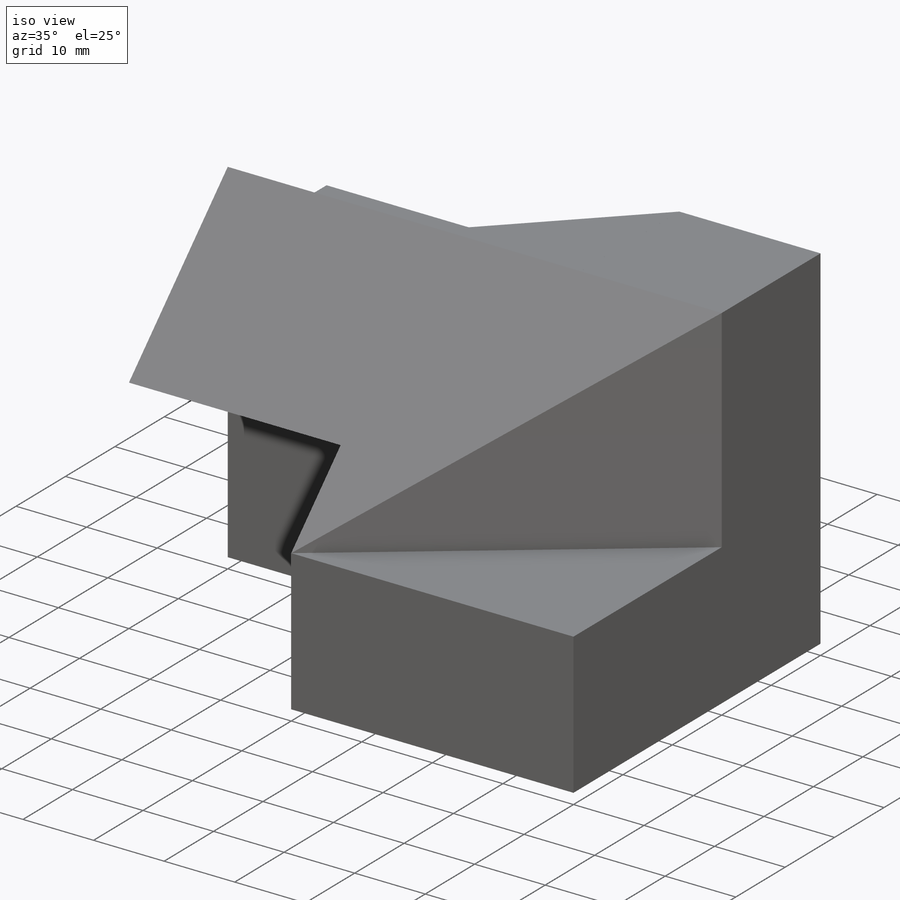
[diagram: iso view]
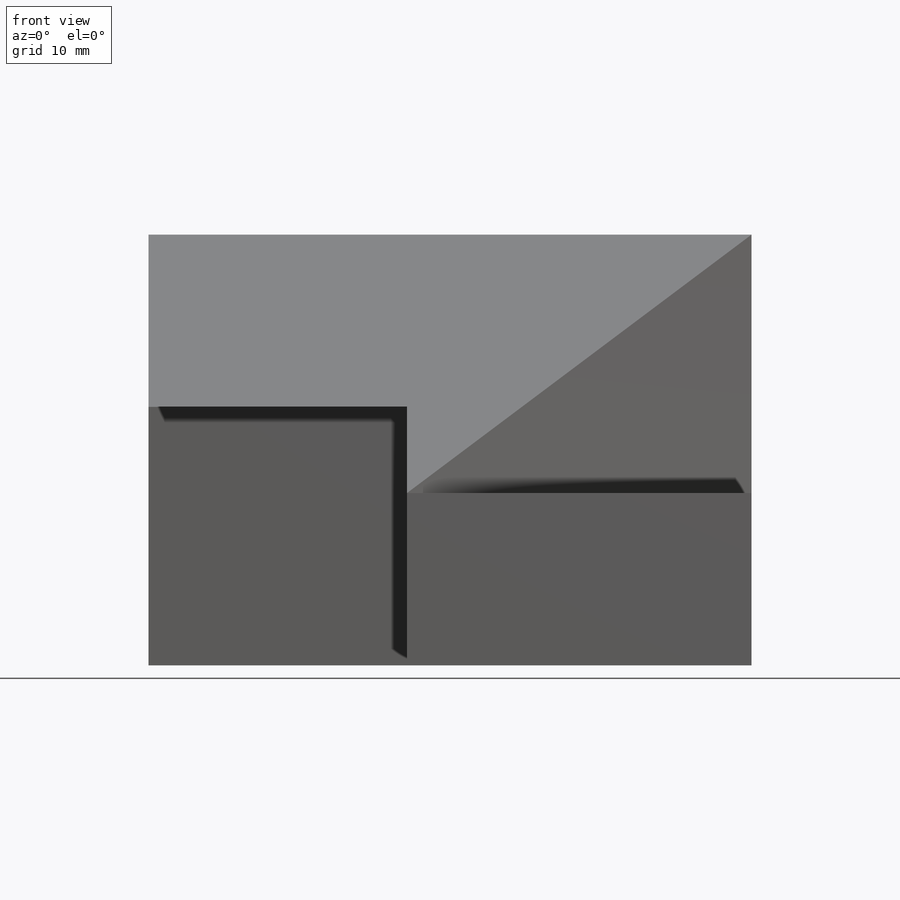
[diagram: front view]
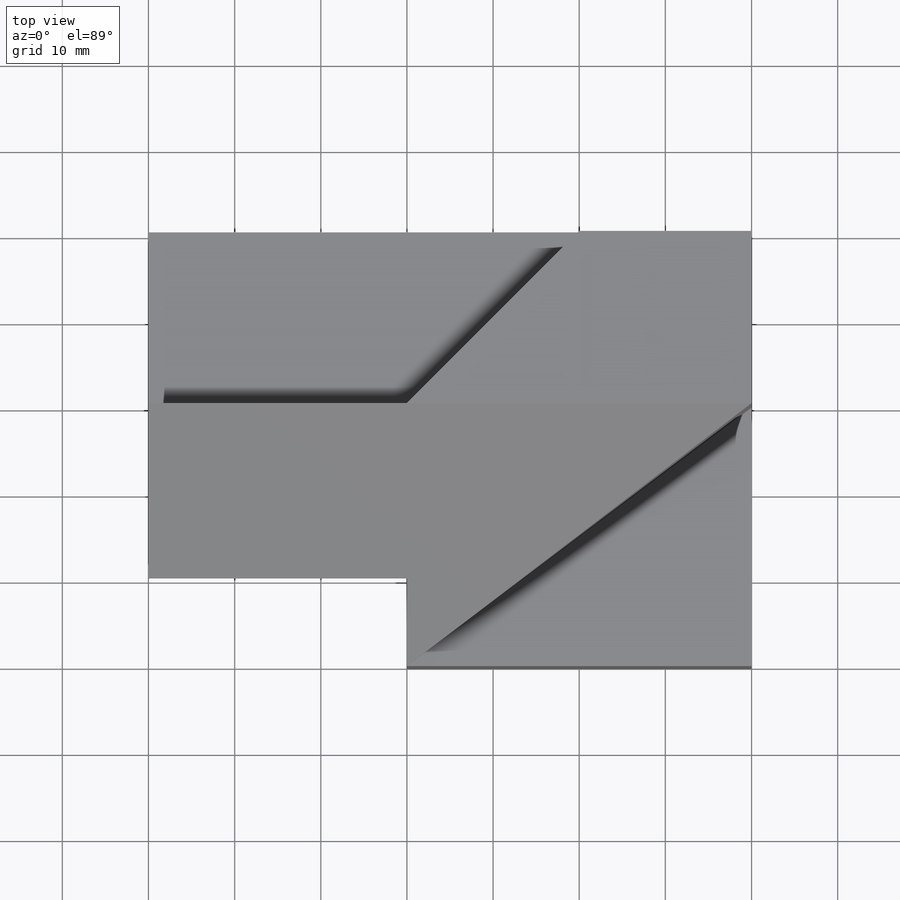
[diagram: top view]
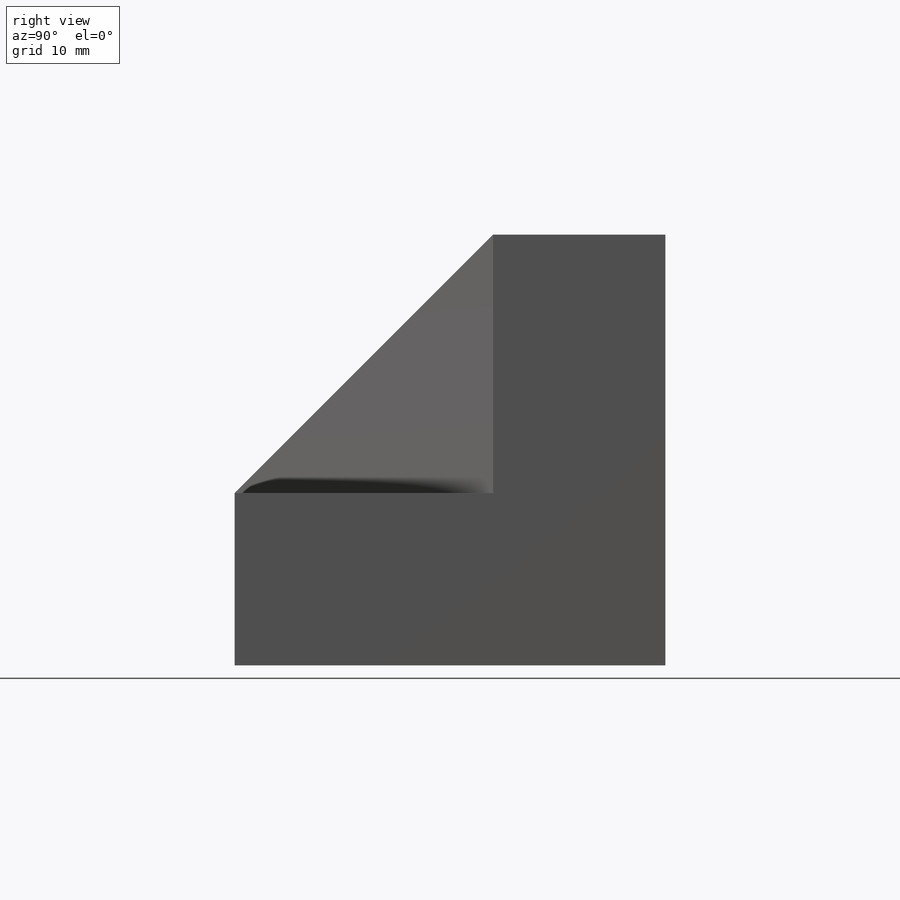
[diagram: right view]
SOLIDWORKS PART (.sldprt)
format: sldprt  version: not decoded by parser v0  size: 414,208 bytes
history: native  units: mm
features: sketch x20, cut_extrude x14, extrude x6, plane x4, material x1 (+13 scaffold rows collapsed)
feature tree (58):
  scaffold x13  (default folders/planes/origin — collapsed)
  material  "Material <not specified>"
  sketch  "Sketch1"  dims[c1.D1=~48.17875mm c1.D2=~60.072249mm c2.D1=70.0mm c2.D2=50.0mm]
  extrude  "Boss-Extrude1"  Depth=50mm
  sketch  "Sketch2"  dims[c1.D1=~11.659764mm c1.D2=~26.991853mm c2.D1=30.0mm c2.D2=10.0mm]
  cut_extrude  "Cut-Extrude1"  Depth=50mm
  sketch  "Sketch3"  dims[D1=20.0mm D2=30.0mm D3=30.0mm D4=30.0mm]
  cut_extrude  "Cut-Extrude2"  Depth=91mm
  sketch  "Sketch6"  dims[D1=20.0mm D2=20.0mm]
  cut_extrude  "Cut-Extrude7"  Depth=30mm
  plane  "Plane2"  Offset=50mm
  sketch  "Sketch10"  dims[D1=10.0mm D2=30.0mm D3=20.0mm]
  cut_extrude  "Cut-Extrude11"  Depth=30mm
  plane  "Plane3"  Offset=50mm
  sketch  "Sketch11"  dims[D1=20.0mm D2=30.0mm D3=40.0mm D4=30.0mm]
  cut_extrude  "Cut-Extrude12"  Depth=10mm
  sketch  "Sketch12"  dims[D1=29.999mm D2=9.999mm D3=9.999mm D4=0.0mm]
  extrude  "Boss-Extrude8"  Depth=10mm
  sketch  "Sketch17"  dims[D1=20.0mm D2=20.0mm]
  cut_extrude  "Cut-Extrude14"  Depth=0.0001mm
  sketch  "Sketch18"  dims[D1=30.0mm]
  extrude  "Boss-Extrude19"  Depth=30mm
  plane  "Plane4"
  sketch  "Sketch19"  dims[D1=30.0mm]
  extrude  "Boss-Extrude20"  Depth=20mm
  sketch  "Sketch21"  dims[D1=~14.57738mm]
  cut_extrude  "Cut-Extrude15"  Depth=20mm
  sketch  "Sketch22"  dims[D1=15.0mm]
  cut_extrude  "Cut-Extrude16"  Depth=54mm
  sketch  "Sketch23"  dims[D1=30.0mm]
  cut_extrude  "Cut-Extrude17"  Depth=54mm
  sketch  "Sketch27"  dims[D1=~28.284271mm]
  extrude  "Boss-Extrude28"  Depth=30mm
  sketch  "Sketch28"  dims[c1.D1=30.0mm c1.D2=~33.035549mm c2.D1=30.0mm c2.D2=30.0mm]
  extrude  "Boss-Extrude30"  Depth=31mm
  sketch  "Sketch29"  dims[c1.D1=~29.847815mm c1.D2=~27.953376mm c2.D1=30.0mm c2.D2=30.0mm]
  cut_extrude  "Cut-Extrude20"  Depth=30mm
  sketch  "Sketch30"  dims[D1=~10.000002mm]
  cut_extrude  "Cut-Extrude21"  Depth=30mm
  sketch  "Sketch31"  dims[D1=0.75mm]
  cut_extrude  "Cut-Extrude22"  Depth=30mm
  sketch  "Sketch32"  dims[D1=20.0mm D2=20.0mm]
  cut_extrude  "Cut-Extrude23"  Depth=0.0001mm
  sketch  "Sketch33"  dims[D1=~36.055469mm]
  cut_extrude  "Cut-Extrude39"  Depth=0.0001mm
  plane  "Plane7"
decode coverage: 40 of 40 modeling features carry decoded parameters
note: ~ marks probable driven/reference dimensions
note: suppression state not decoded; provenance and decode notes live in map.json
